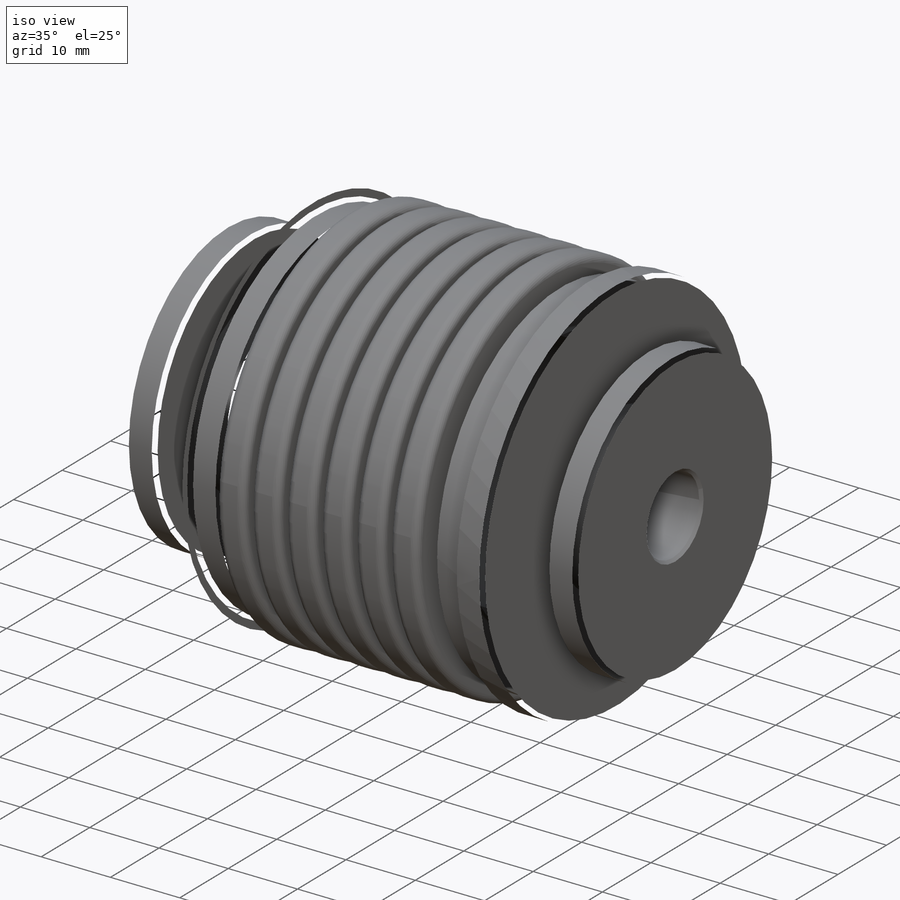
[diagram: iso view]
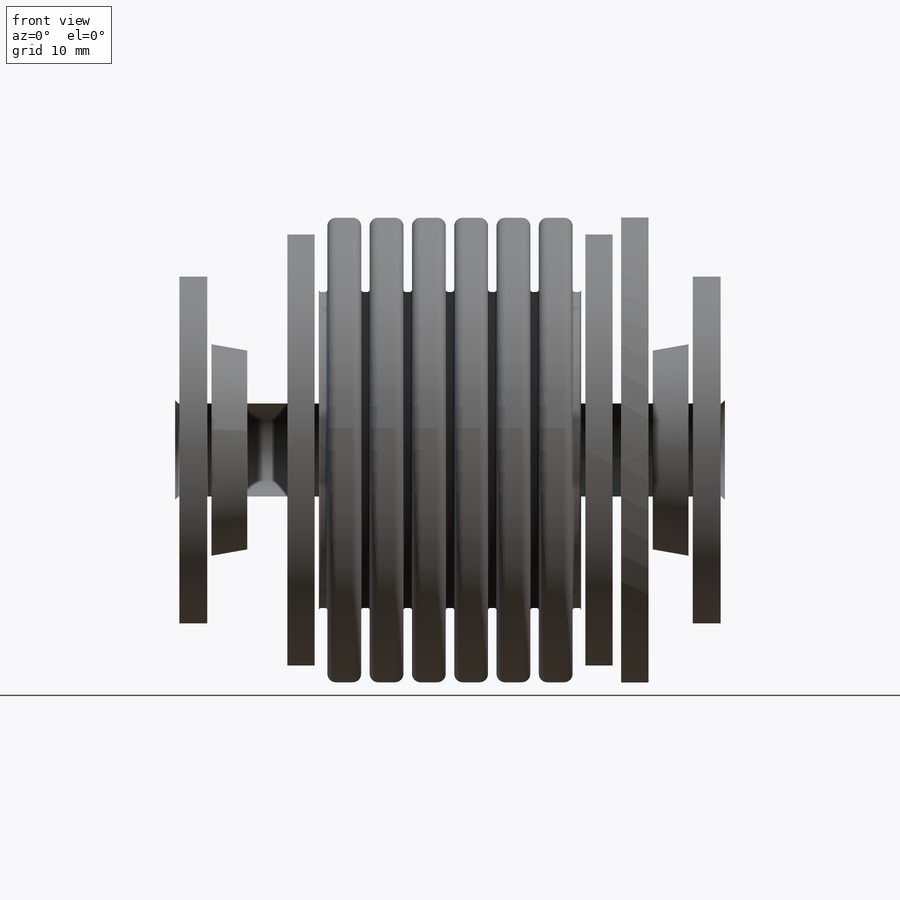
[diagram: front view]
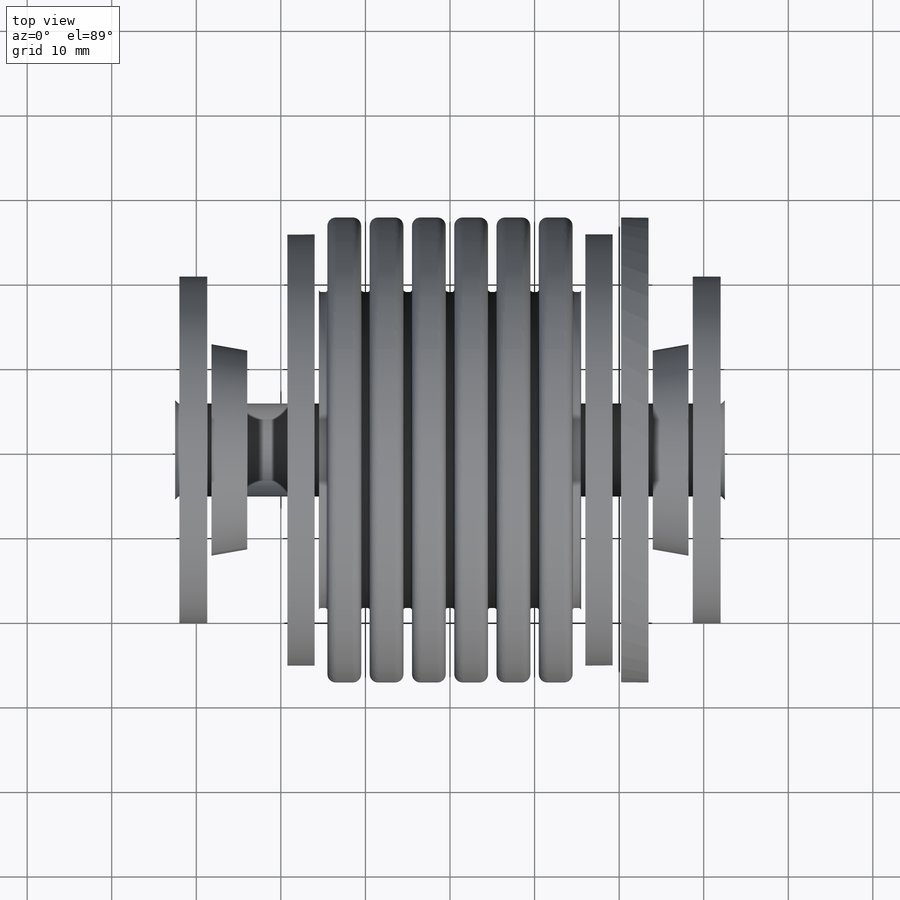
[diagram: top view]
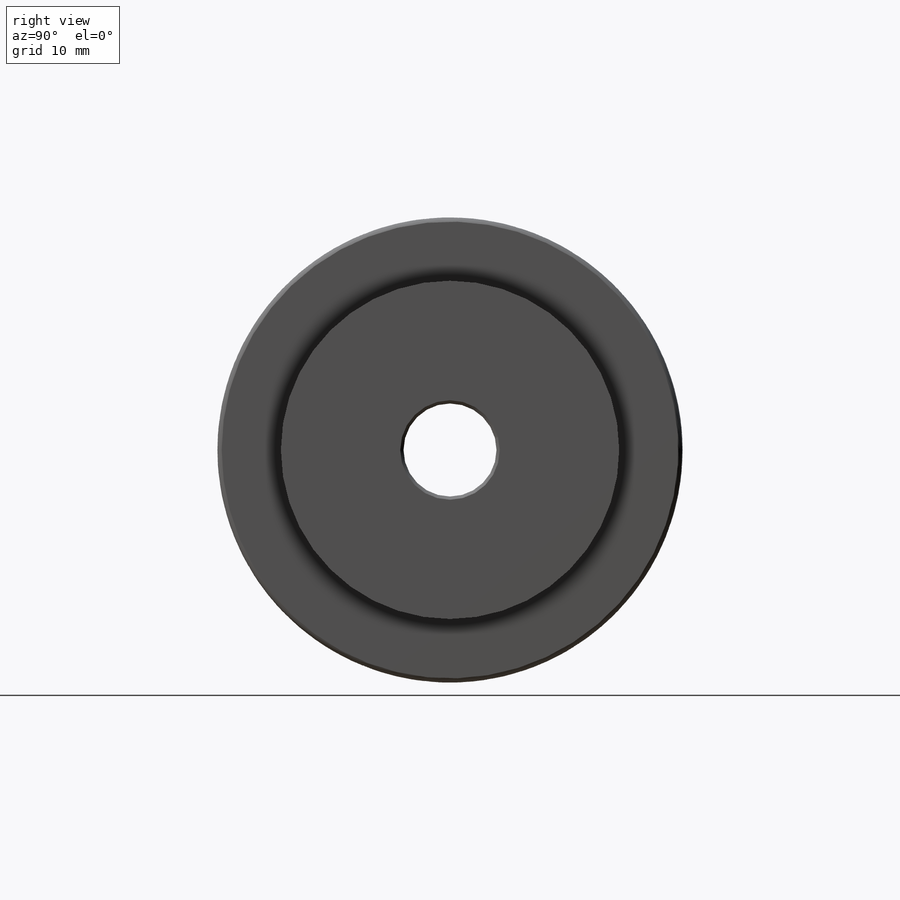
[diagram: right view]
SOLIDWORKS PART (.sldprt)
format: sldprt  version: not decoded by parser v0  size: 935,936 bytes
history: native  units: mm
features: sketch x7, extrude x3, mirror x3, cut_extrude x2, chamfer x2, cut_revolve x2, fillet x2, material x1, plane x1 + 1 further entry (+17 scaffold rows collapsed)
feature tree (41):
  scaffold x17  (default folders/planes/origin — collapsed)
  material  "Material <not specified>"
  "Design Table"
  sketch  "Sketch1"  dims[dim D=55.0mm]
  extrude  "Boss-Extrude1"  Depth=65mm dim L=65mm
  sketch  "Sketch2"  dims[dim d1=11.0mm]
  cut_extrude  "Cut-Extrude1"  Depth=19mm
  mirror  "Mirror3"
  chamfer  "Chamfer1"  Distance=0.381mm Angle=45deg
  plane  "L1"  Offset=22mm Dim L1=22mm
  sketch  "Sketch5"
  cut_extrude  "Cut-Extrude2"  [1 undecoded]
  sketch  "Sketch8"  dims[c1.D2=0.5mm c1.D4=1.0mm c1.Dim L1=8.5mm c1.D5=0.5mm c1.D1=1.0mm c2.Dim L1=8.5mm c2.D2=2.0mm c2.Dim E=27.0mm c3.Dim L1=12.5mm c3.Dim L2=31.0mm c3.D3=2.0mm c3.D2=~134.481811deg c4.D2=4.0]
  cut_revolve  "Cut-Revolve1"  Angle=360deg
  mirror  "Mirror2"
  fillet  "Fillet1"  Radius=1mm
  fillet  "Fillet2"  Radius=0.25mm
  sketch  "Sketch9"  dims[c1.D1=5.0mm c1.D2=2.0mm c1.D3=4.0mm c1.D4=4.0mm c1.D5=~3.850325mm c2.D5=10.0deg]
  cut_revolve  "Cut-Revolve2"  Angle=360deg
  sketch  "Sketch10"  dims[Dim Hex Head Width=7.0mm D1=6.0]
  extrude  "Boss-Extrude2"  Depth=2.8mm Dim Hex Head Height=2.8mm
  sketch  "Sketch11"  dims[Dim M=4.0mm D1=6.0]
  extrude  "Boss-Extrude3"  [1 undecoded]
  mirror  "Mirror5"
  chamfer  "Chamfer2"  Distance=0.5mm Angle=45deg
decode coverage: 15 of 21 modeling features carry decoded parameters; 1 rows unclassified (native names shown)
note: ~ marks probable driven/reference dimensions
note: 2 parameter values undecoded
note: suppression state not decoded; provenance and decode notes live in map.json
